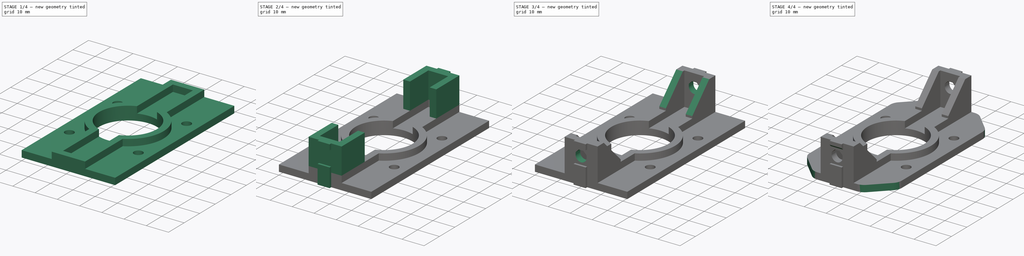
[diagram: build sequence overview — one tinted view per stage of 4, left to right]
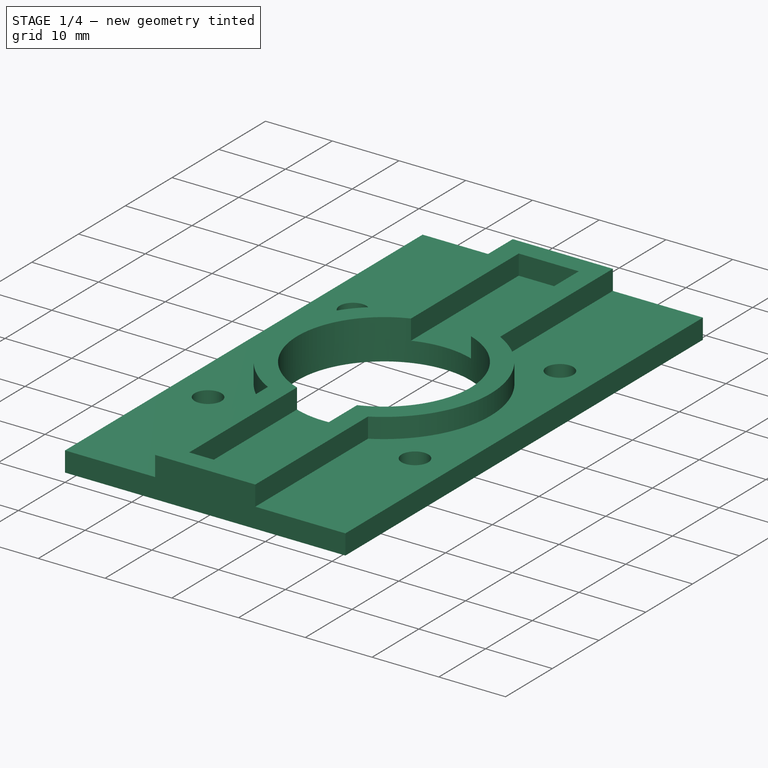
[diagram: stage 1 of 4 — iso view after this stage's code; geometry added in this stage tinted green]
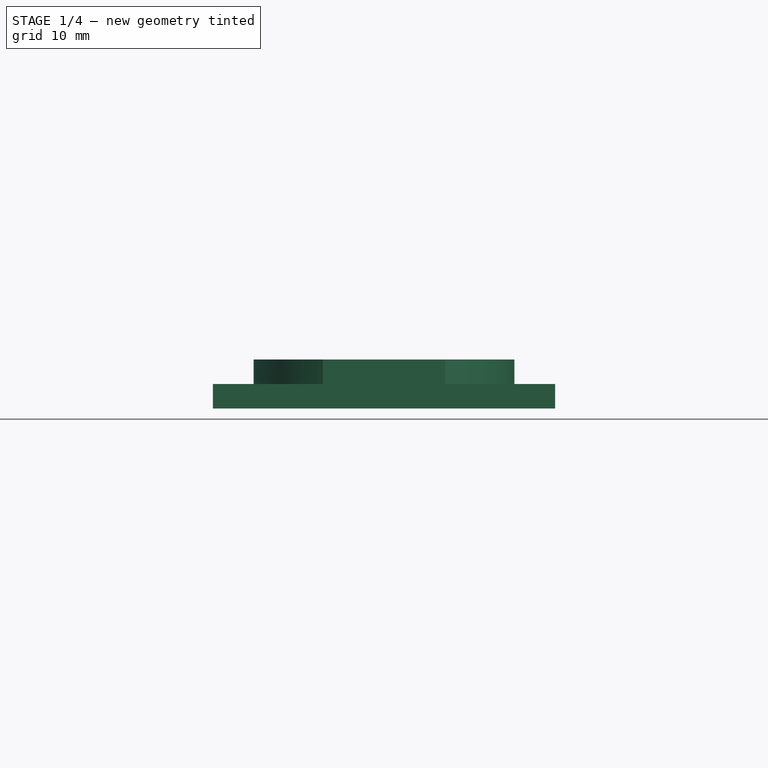
[diagram: stage 1 of 4 — front view after this stage's code; geometry added in this stage tinted green]
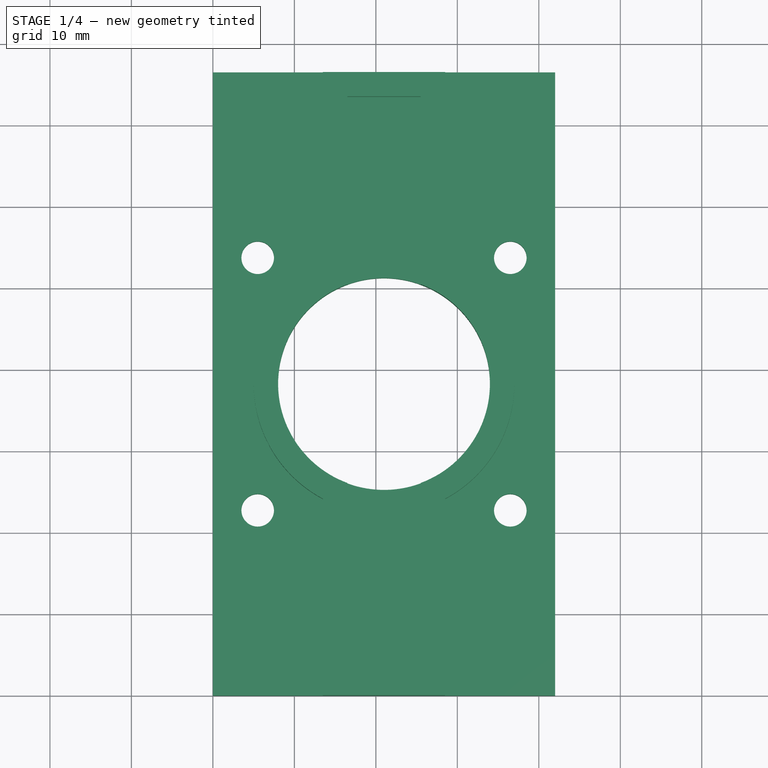
[diagram: stage 1 of 4 — top view after this stage's code; geometry added in this stage tinted green]
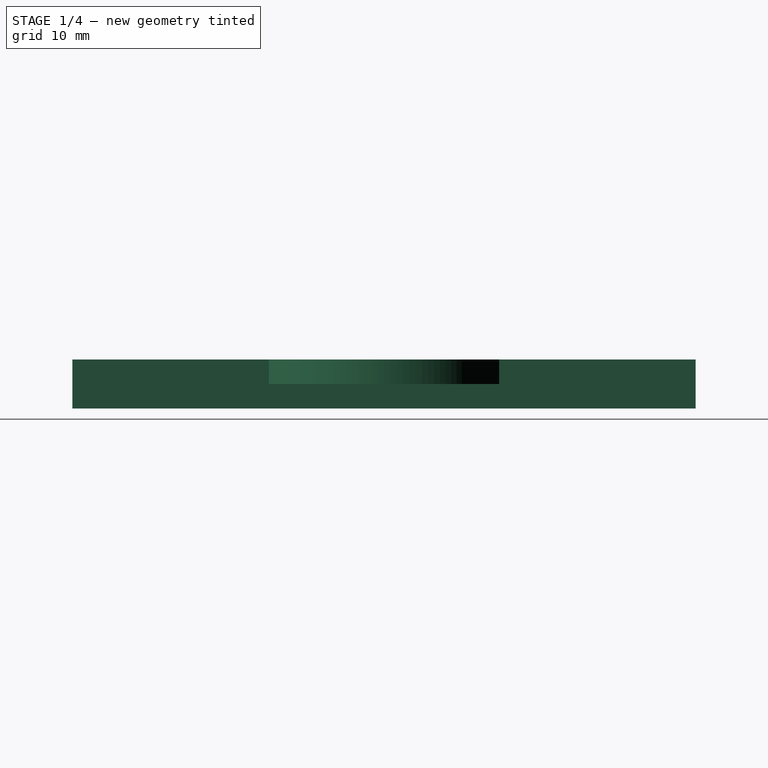
[diagram: stage 1 of 4 — right view after this stage's code; geometry added in this stage tinted green]
FCSTD DOCUMENT  (FreeCAD 0.16R5231 (Git))
Label: StepperTop
License: All rights reserved
LicenseURL: http://de.wikipedia.org/wiki/Alle_Rechte_vorbehalten
objects: Sketcher::SketchObject×7, PartDesign::Pad×5, PartDesign::Chamfer×3, PartDesign::Pocket×2, PartDesign::Fillet×1
note: 25 computed .brp shape members not serialized (recipe doc carries the construction recipe); baked Part::Feature solids carry a one-line shape summary decoded from their .brp

FEATURE [Sketcher::SketchObject] Sketch
  sketch-geometry (15):
    g0: Circle CenterX=21 CenterY=38.25 CenterZ=0 NormalX=0 NormalY=0 NormalZ=1 Radius=13
    g1: Circle CenterX=5.5 CenterY=22.75 CenterZ=0 NormalX=0 NormalY=0 NormalZ=1 Radius=2
    g2: Circle CenterX=5.5 CenterY=53.75 CenterZ=0 NormalX=0 NormalY=0 NormalZ=1 Radius=2
    g3: Circle CenterX=36.5 CenterY=53.75 CenterZ=0 NormalX=0 NormalY=0 NormalZ=1 Radius=2
    g4: Circle CenterX=36.5 CenterY=22.75 CenterZ=0 NormalX=0 NormalY=0 NormalZ=1 Radius=2
    g5: LineSegment StartX=0 StartY=76.5 StartZ=0 EndX=42 EndY=76.5 EndZ=0
    g6: LineSegment StartX=42 StartY=76.5 StartZ=0 EndX=42 EndY=0 EndZ=0
    g7: LineSegment StartX=42 StartY=0 StartZ=0 EndX=0 EndY=0 EndZ=0
    g8: LineSegment StartX=0 StartY=0 StartZ=0 EndX=0 EndY=76.5 EndZ=0
    g9: LineSegment [constr] StartX=5.5 StartY=53.75 StartZ=0 EndX=36.5 EndY=53.75 EndZ=0
    g10: LineSegment [constr] StartX=36.5 StartY=53.75 StartZ=0 EndX=36.5 EndY=22.75 EndZ=0
    g11: LineSegment [constr] StartX=36.5 StartY=22.75 StartZ=0 EndX=5.5 EndY=22.75 EndZ=0
    g12: LineSegment [constr] StartX=5.5 StartY=22.75 StartZ=0 EndX=5.5 EndY=53.75 EndZ=0
    g13: LineSegment [constr] StartX=42 StartY=76.5 StartZ=0 EndX=0 EndY=0 EndZ=0
    g14: LineSegment [constr] StartX=5.5 StartY=22.75 StartZ=0 EndX=36.5 EndY=53.75 EndZ=0
  constraints (36):
    c: Radius(g0) = 13
    c: Equal(g2,g3)
    c: Equal(g3,g4)
    c: Equal(g4,g1)
    c: Radius(g2) = 2
    c: Coincident(g5,g6)
    c: Coincident(g6,g7)
    c: Coincident(g7,g8)
    c: Coincident(g8,g5)
    c: Horizontal(g5)
    c: Horizontal(g7)
    c: Vertical(g6)
    c: Vertical(g8)
    c: Coincident(g7,g-1)
    c: DistanceX(g7) = -42
    c: DistanceY(g8) = 76.5
    c: Coincident(g9,g10)
    c: Coincident(g10,g11)
    c: Coincident(g11,g12)
    c: Coincident(g12,g9)
    c: Horizontal(g9)
    c: Horizontal(g11)
    c: Vertical(g10)
    c: Vertical(g12)
    c: Coincident(g9,g2)
    c: Coincident(g10,g4)
    c: Coincident(g3,g9)
    c: Coincident(g1,g11)
    c: Equal(g9,g12)
    c: DistanceY(g10) = -31
    c: Coincident(g13,g5)
    c: Coincident(g13,g-1)
    c: Symmetric(g13,g13,g0)
    c: Coincident(g14,g1)
    c: Coincident(g14,g3)
    c: Symmetric(g14,g14,g0)
FEATURE [PartDesign::Pad] Pad
  Length = 3
  Length2 = 100
  Sketch = -> Sketch
  Type = 0
FEATURE [Sketcher::SketchObject] Sketch001
  ExternalGeometry = -> [Pad]
  Placement = pos=(0,0,3) rot=(0,0,1;0rad)
  Support = -> Pad [Face11]
  sketch-geometry (9):
    g0: LineSegment StartX=13.5 StartY=76.5 StartZ=0 EndX=28.5 EndY=76.5 EndZ=0
    g1: LineSegment StartX=28.5 StartY=76.5 StartZ=0 EndX=28.5 EndY=52.3833 EndZ=0
    g2: LineSegment StartX=13.5 StartY=52.3833 StartZ=0 EndX=13.5 EndY=76.5 EndZ=0
    g3: LineSegment StartX=13.5 StartY=0 StartZ=0 EndX=28.5 EndY=0 EndZ=0
    g4: LineSegment StartX=28.5 StartY=0 StartZ=0 EndX=28.5 EndY=24.1167 EndZ=0
    g5: LineSegment StartX=13.5 StartY=24.1167 StartZ=0 EndX=13.5 EndY=0 EndZ=0
    g6: LineSegment [constr] StartX=21 StartY=76.5 StartZ=0 EndX=21 EndY=0 EndZ=0
    g7: ArcOfCircle CenterX=21 CenterY=38.25 CenterZ=0 NormalX=0 NormalY=0 NormalZ=1 Radius=16 StartAngle=2.05867 EndAngle=4.22451
    g8: ArcOfCircle CenterX=21 CenterY=38.25 CenterZ=0 NormalX=0 NormalY=0 NormalZ=1 Radius=16 StartAngle=5.20026 EndAngle=7.36611
  constraints (27):
    c: Coincident(g0,g1)
    c: Coincident(g2,g0)
    c: Horizontal(g0)
    c: Vertical(g1)
    c: Vertical(g2)
    c: PointOnObject(g0,g-3)
    c: Coincident(g3,g4)
    c: Coincident(g5,g3)
    c: Horizontal(g3)
    c: Vertical(g4)
    c: Vertical(g5)
    c: PointOnObject(g3,g-4)
    c: Equal(g2,g5)
    c: PointOnObject(g6,g-3)
    c: Vertical(g6)
    c: Symmetric(g-4,g-4,g6)
    c: Symmetric(g0,g0,g6)
    c: Symmetric(g3,g3,g6)
    c: Coincident(g8,g7)
    c: Radius(g8) = 16
    c: Equal(g7,g8)
    c: Symmetric(g6,g6,g7)
    c: DistanceX(g0,g0) = 15
    c: Coincident(g1,g8)
    c: Coincident(g2,g7)
    c: Coincident(g5,g7)
    c: Coincident(g8,g4)
FEATURE [PartDesign::Pad] Pad001
  Length = 3
  Length2 = 100
  Sketch = -> Sketch001
  Type = 0
FEATURE [Sketcher::SketchObject] Sketch003
  ExternalGeometry = -> [Pad001]
  Placement = pos=(0,0,6) rot=(0,0,1;0rad)
  Support = -> Pad001 [Face21]
  sketch-geometry (15):
    g0: LineSegment StartX=25.5 StartY=50.4463 StartZ=0 EndX=25.5 EndY=73.5 EndZ=0
    g1: LineSegment StartX=25.5 StartY=73.5 StartZ=0 EndX=16.5 EndY=73.5 EndZ=0
    g2: LineSegment StartX=16.5 StartY=73.5 StartZ=0 EndX=16.5 EndY=50.4463 EndZ=0
    g3: LineSegment StartX=25.5 StartY=26.0537 StartZ=0 EndX=25.5 EndY=3 EndZ=0
    g4: LineSegment StartX=25.5 StartY=3 StartZ=0 EndX=16.5 EndY=3 EndZ=0
    g5: LineSegment StartX=16.5 StartY=3 StartZ=0 EndX=16.5 EndY=26.0537 EndZ=0
    g6: ArcOfCircle CenterX=21 CenterY=38.25 CenterZ=0 NormalX=0 NormalY=0 NormalZ=1 Radius=13 StartAngle=1.92426 EndAngle=4.35892
    g7: ArcOfCircle CenterX=21 CenterY=38.25 CenterZ=0 NormalX=0 NormalY=0 NormalZ=1 Radius=13 StartAngle=5.06586 EndAngle=7.50051
    g8: LineSegment [constr] StartX=16.5 StartY=50.4463 StartZ=0 EndX=25.5 EndY=50.4463 EndZ=0
    g9: LineSegment [constr] StartX=16.5 StartY=26.0537 StartZ=0 EndX=25.5 EndY=26.0537 EndZ=0
    g10: LineSegment [constr] StartX=21 StartY=76.5 StartZ=0 EndX=21 EndY=73.5 EndZ=0
    g11: LineSegment [constr] StartX=21 StartY=73.5 StartZ=0 EndX=21 EndY=50.4463 EndZ=0
    g12: LineSegment [constr] StartX=21 StartY=50.4463 StartZ=0 EndX=21 EndY=26.0537 EndZ=0
    g13: LineSegment [constr] StartX=21 StartY=26.0537 StartZ=0 EndX=21 EndY=3 EndZ=0
    g14: LineSegment [constr] StartX=21 StartY=3 StartZ=0 EndX=21 EndY=0 EndZ=0
  constraints (43):
    c: Vertical(g0)
    c: Coincident(g0,g1)
    c: Horizontal(g1)
    c: Coincident(g1,g2)
    c: Vertical(g2)
    c: Vertical(g3)
    c: Coincident(g3,g4)
    c: Horizontal(g4)
    c: Coincident(g4,g5)
    c: Vertical(g5)
    c: Coincident(g6,g-5)
    c: Coincident(g7,g6)
    c: Radius(g7) = 13
    c: Equal(g7,g6)
    c: Coincident(g2,g6)
    c: Coincident(g0,g7)
    c: Coincident(g5,g6)
    c: Coincident(g3,g7)
    c: Coincident(g8,g2)
    c: Coincident(g8,g0)
    c: Horizontal(g8)
    c: Coincident(g9,g5)
    c: Coincident(g9,g3)
    c: Horizontal(g9)
    c: Equal(g1,g4)
    c: PointOnObject(g10,g-6)
    c: PointOnObject(g10,g1)
    c: Vertical(g10)
    c: Coincident(g11,g10)
    c: PointOnObject(g11,g8)
    c: Vertical(g11)
    c: Coincident(g12,g11)
    c: PointOnObject(g12,g9)
    c: Vertical(g12)
    c: Coincident(g13,g12)
    c: PointOnObject(g13,g4)
    c: Vertical(g13)
    c: Coincident(g14,g13)
    c: Vertical(g14)
    c: Symmetric(g-7,g-7,g14)
    c: DistanceX(g0,g-6) = 3
    c: DistanceY(g0,g-6) = 3
    c: Equal(g0,g3)
FEATURE [PartDesign::Pocket] Pocket
  Length = 3
  Sketch = -> Sketch003
  Type = 0
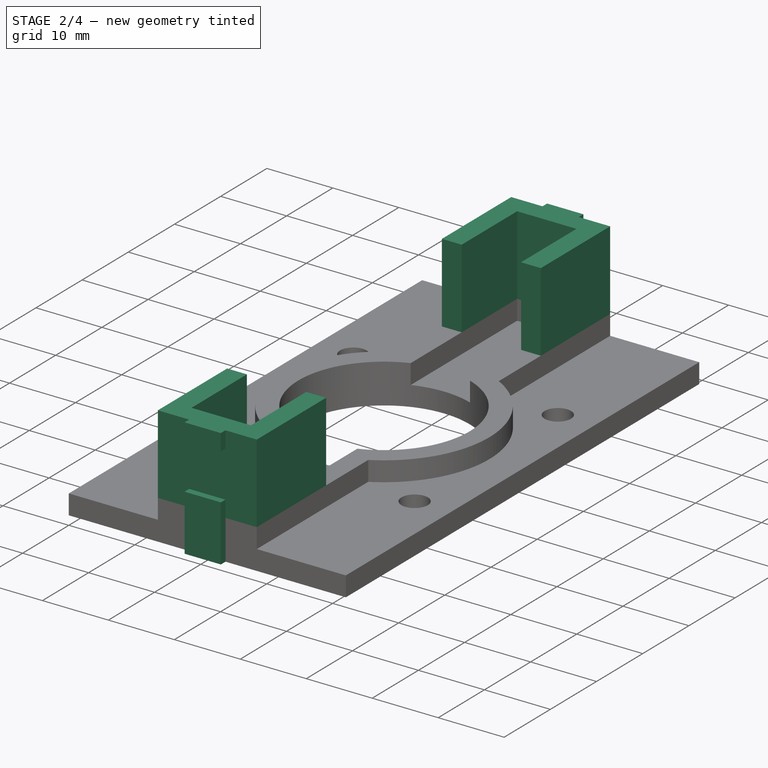
[diagram: stage 2 of 4 — iso view after this stage's code; geometry added in this stage tinted green]
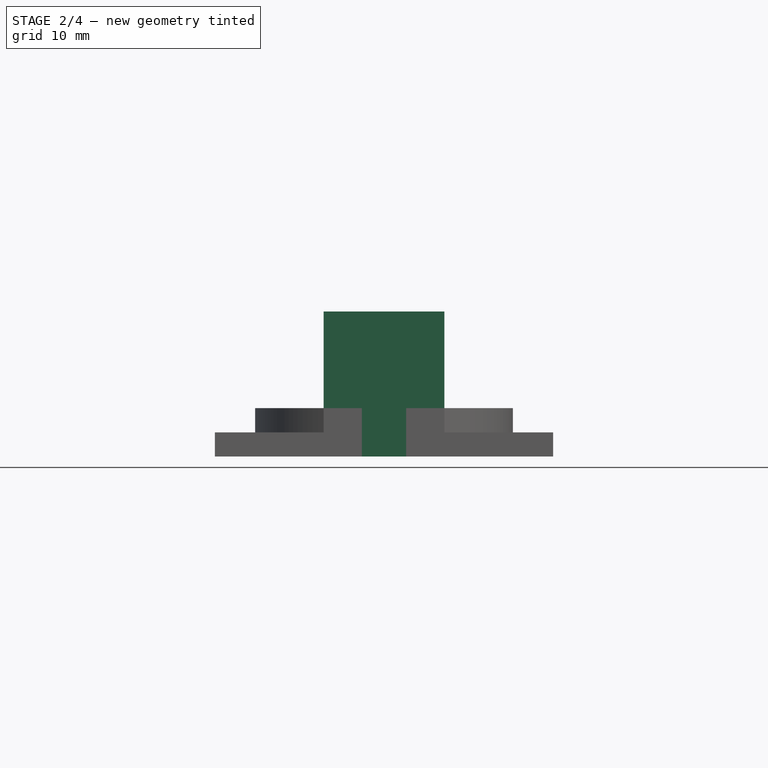
[diagram: stage 2 of 4 — front view after this stage's code; geometry added in this stage tinted green]
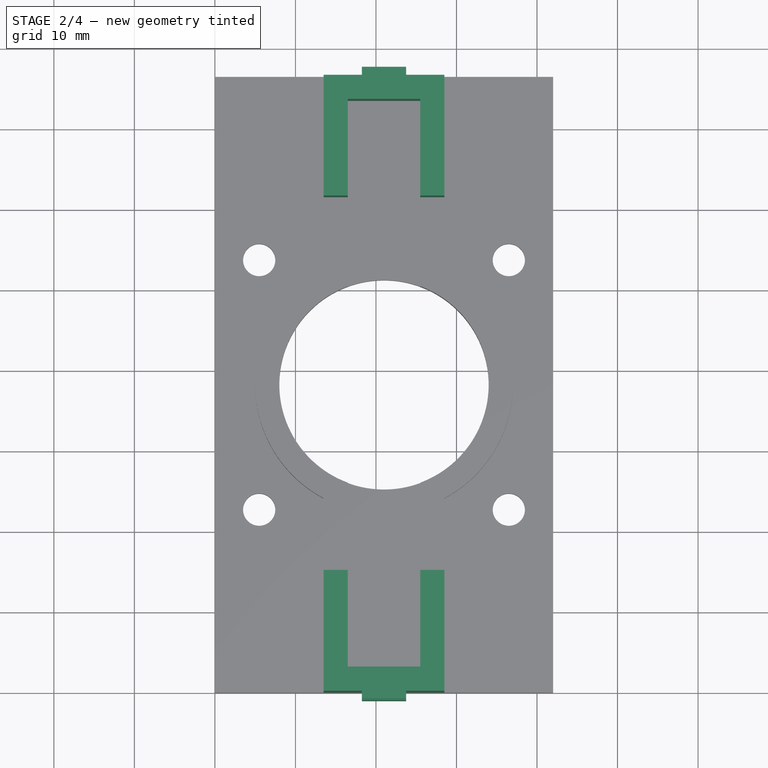
[diagram: stage 2 of 4 — top view after this stage's code; geometry added in this stage tinted green]
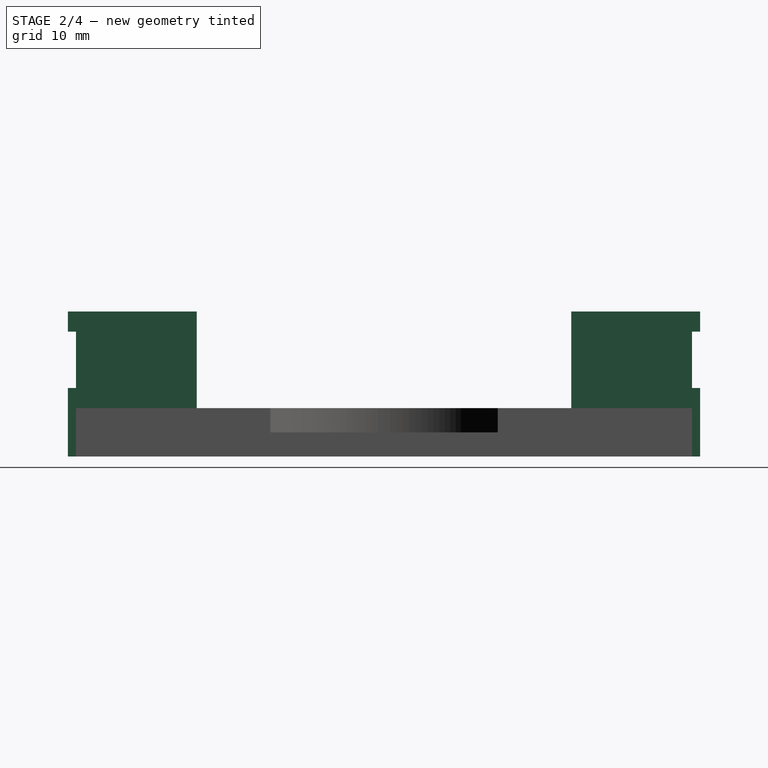
[diagram: stage 2 of 4 — right view after this stage's code; geometry added in this stage tinted green]
FEATURE [Sketcher::SketchObject] Sketch007
  ExternalGeometry = -> [Pocket]
  Placement = pos=(0,0,6) rot=(0,0,1;0rad)
  Support = -> Pocket [Face21]
  sketch-geometry (18):
    g0: LineSegment StartX=13.5 StartY=76.5 StartZ=0 EndX=28.5 EndY=76.5 EndZ=0
    g1: LineSegment StartX=28.5 StartY=76.5 StartZ=0 EndX=28.5 EndY=61.5 EndZ=0
    g2: LineSegment StartX=28.5 StartY=61.5 StartZ=0 EndX=25.5 EndY=61.5 EndZ=0
    g3: LineSegment StartX=25.5 StartY=61.5 StartZ=0 EndX=25.5 EndY=73.5 EndZ=0
    g4: LineSegment StartX=25.5 StartY=73.5 StartZ=0 EndX=16.5 EndY=73.5 EndZ=0
    g5: LineSegment StartX=16.5 StartY=73.5 StartZ=0 EndX=16.5 EndY=61.5 EndZ=0
    g6: LineSegment StartX=16.5 StartY=61.5 StartZ=0 EndX=13.5 EndY=61.5 EndZ=0
    g7: LineSegment StartX=13.5 StartY=61.5 StartZ=0 EndX=13.5 EndY=76.5 EndZ=0
    g8: LineSegment [constr] StartX=16.5 StartY=61.5 StartZ=0 EndX=25.5 EndY=61.5 EndZ=0
    g9: LineSegment StartX=28.5 StartY=0 StartZ=0 EndX=28.5 EndY=15 EndZ=0
    g10: LineSegment StartX=28.5 StartY=15 StartZ=0 EndX=25.5 EndY=15 EndZ=0
    g11: LineSegment StartX=25.5 StartY=15 StartZ=0 EndX=25.5 EndY=3 EndZ=0
    g12: LineSegment StartX=25.5 StartY=3 StartZ=0 EndX=16.5 EndY=3 EndZ=0
    g13: LineSegment StartX=16.5 StartY=3 StartZ=0 EndX=16.5 EndY=15 EndZ=0
    g14: LineSegment StartX=16.5 StartY=15 StartZ=0 EndX=13.5 EndY=15 EndZ=0
    g15: LineSegment StartX=13.5 StartY=15 StartZ=0 EndX=13.5 EndY=0 EndZ=0
    g16: LineSegment StartX=13.5 StartY=0 StartZ=0 EndX=28.5 EndY=0 EndZ=0
    g17: LineSegment [constr] StartX=16.5 StartY=15 StartZ=0 EndX=25.5 EndY=15 EndZ=0
  constraints (44):
    c: Coincident(g-5,g0)
    c: Coincident(g0,g-8)
    c: Coincident(g0,g1)
    c: PointOnObject(g1,g-8)
    c: Coincident(g1,g2)
    c: PointOnObject(g2,g-7)
    c: Horizontal(g2)
    c: Coincident(g2,g3)
    c: Coincident(g3,g-7)
    c: Coincident(g3,g4)
    c: Coincident(g4,g-6)
    c: Coincident(g4,g5)
    c: PointOnObject(g5,g-6)
    c: Coincident(g5,g6)
    c: PointOnObject(g6,g-5)
    c: Horizontal(g6)
    c: Coincident(g6,g7)
    c: Coincident(g7,g0)
    c: Coincident(g8,g5)
    c: Coincident(g8,g2)
    c: Horizontal(g8)
    c: Coincident(g-12,g9)
    c: PointOnObject(g9,g-12)
    c: Coincident(g9,g10)
    c: PointOnObject(g10,g-11)
    c: Coincident(g10,g11)
    c: Coincident(g11,g-11)
    c: Coincident(g11,g12)
    c: Coincident(g12,g-10)
    c: Coincident(g12,g13)
    c: PointOnObject(g13,g-10)
    c: Coincident(g13,g14)
    c: PointOnObject(g14,g-9)
    c: Horizontal(g14)
    c: Coincident(g14,g15)
    c: Coincident(g15,g-9)
    c: Coincident(g15,g16)
    c: Coincident(g16,g9)
    c: Horizontal(g10)
    c: Coincident(g17,g13)
    c: Coincident(g17,g10)
    c: Horizontal(g17)
    c: Equal(g1,g9)
    c: DistanceY(g1) = -15
FEATURE [PartDesign::Pad] Pad002
  Length = 12
  Length2 = 100
  Sketch = -> Sketch007
  Type = 0
FEATURE [Sketcher::SketchObject] Sketch004
  ExternalGeometry = -> [Pad002]
  Placement = pos=(0,0,0) rot=(1,0,0;1.5708rad)
  Support = -> Pad002 [Face21]
  sketch-geometry (9):
    g0: LineSegment StartX=18.25 StartY=18 StartZ=0 EndX=23.75 EndY=18 EndZ=0
    g1: LineSegment StartX=23.75 StartY=18 StartZ=0 EndX=23.75 EndY=15.5 EndZ=0
    g2: LineSegment StartX=23.75 StartY=15.5 StartZ=0 EndX=18.25 EndY=15.5 EndZ=0
    g3: LineSegment StartX=18.25 StartY=15.5 StartZ=0 EndX=18.25 EndY=18 EndZ=0
    g4: LineSegment [constr] StartX=21 StartY=18 StartZ=0 EndX=21 EndY=0 EndZ=0
    g5: LineSegment StartX=18.25 StartY=8.5 StartZ=0 EndX=23.75 EndY=8.5 EndZ=0
    g6: LineSegment StartX=23.75 StartY=8.5 StartZ=0 EndX=23.75 EndY=0 EndZ=0
    g7: LineSegment StartX=23.75 StartY=0 StartZ=0 EndX=18.25 EndY=0 EndZ=0
    g8: LineSegment StartX=18.25 StartY=0 StartZ=0 EndX=18.25 EndY=8.5 EndZ=0
  constraints (26):
    c: Coincident(g0,g1)
    c: Coincident(g1,g2)
    c: Coincident(g2,g3)
    c: Coincident(g3,g0)
    c: Horizontal(g0)
    c: Horizontal(g2)
    c: Vertical(g1)
    c: Vertical(g3)
    c: DistanceX(g0) = 5.5
    c: PointOnObject(g4,g0)
    c: Vertical(g4)
    c: Symmetric(g0,g0,g4)
    c: Symmetric(g-3,g-3,g4)
    c: Symmetric(g-4,g-4,g4)
    c: DistanceY(g1) = -2.5
    c: Coincident(g5,g6)
    c: Coincident(g6,g7)
    c: Coincident(g7,g8)
    c: Coincident(g8,g5)
    c: Horizontal(g5)
    c: Horizontal(g7)
    c: Vertical(g6)
    c: Vertical(g8)
    c: Symmetric(g7,g7,g4)
    c: Equal(g5,g2)
    c: DistanceY(g6) = -8.5
FEATURE [PartDesign::Pad] Pad003
  Length = 1
  Length2 = 100
  Sketch = -> Sketch004
  Type = 0
FEATURE [Sketcher::SketchObject] Sketch005
  ExternalGeometry = -> [Pad003]
  Placement = pos=(0,76.5,0) rot=(0,0.707107,0.707107;3.14159rad)
  Support = -> Pad003 [Face24]
  sketch-geometry (10):
    g0: LineSegment StartX=-23.75 StartY=18 StartZ=0 EndX=-18.25 EndY=18 EndZ=0
    g1: LineSegment StartX=-18.25 StartY=18 StartZ=0 EndX=-18.25 EndY=15.5 EndZ=0
    g2: LineSegment StartX=-18.25 StartY=15.5 StartZ=0 EndX=-23.75 EndY=15.5 EndZ=0
    g3: LineSegment StartX=-23.75 StartY=15.5 StartZ=0 EndX=-23.75 EndY=18 EndZ=0
    g4: LineSegment [constr] StartX=-21 StartY=18 StartZ=0 EndX=-21 EndY=15.5 EndZ=0
    g5: LineSegment StartX=-23.75 StartY=8.5 StartZ=0 EndX=-18.25 EndY=8.5 EndZ=0
    g6: LineSegment StartX=-18.25 StartY=8.5 StartZ=0 EndX=-18.25 EndY=0 EndZ=0
    g7: LineSegment StartX=-18.25 StartY=0 StartZ=0 EndX=-23.75 EndY=0 EndZ=0
    g8: LineSegment StartX=-23.75 StartY=0 StartZ=0 EndX=-23.75 EndY=8.5 EndZ=0
    g9: LineSegment [constr] StartX=-21 StartY=8.5 StartZ=0 EndX=-21 EndY=0 EndZ=0
  constraints (30):
    c: Coincident(g0,g1)
    c: Coincident(g1,g2)
    c: Coincident(g2,g3)
    c: Coincident(g3,g0)
    c: Horizontal(g0)
    c: Horizontal(g2)
    c: Vertical(g1)
    c: Vertical(g3)
    c: PointOnObject(g4,g0)
    c: PointOnObject(g4,g2)
    c: Vertical(g4)
    c: Symmetric(g0,g0,g4)
    c: DistanceX(g0) = 5.5
    c: DistanceY(g1) = -2.5
    c: Symmetric(g-3,g-3,g4)
    c: Coincident(g5,g6)
    c: Coincident(g6,g7)
    c: Coincident(g7,g8)
    c: Coincident(g8,g5)
    c: Horizontal(g5)
    c: Horizontal(g7)
    c: Vertical(g6)
    c: Vertical(g8)
    c: Equal(g2,g5)
    c: PointOnObject(g9,g5)
    c: PointOnObject(g9,g7)
    c: Vertical(g9)
    c: Symmetric(g5,g5,g9)
    c: Symmetric(g-4,g-4,g9)
    c: DistanceY(g6) = -8.5
FEATURE [PartDesign::Pad] Pad004
  Length = 1
  Length2 = 100
  Sketch = -> Sketch005
  Type = 0
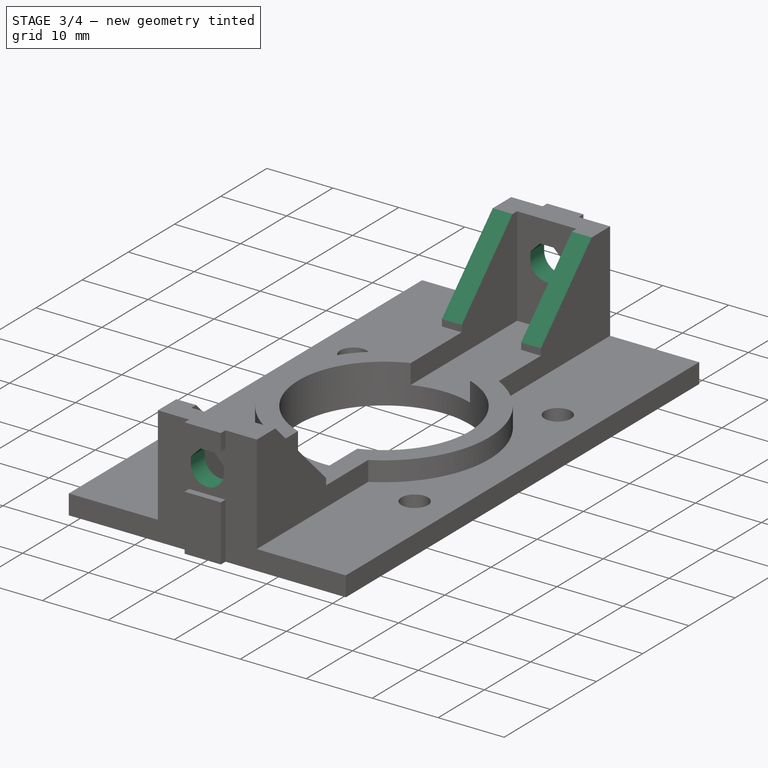
[diagram: stage 3 of 4 — iso view after this stage's code; geometry added in this stage tinted green]
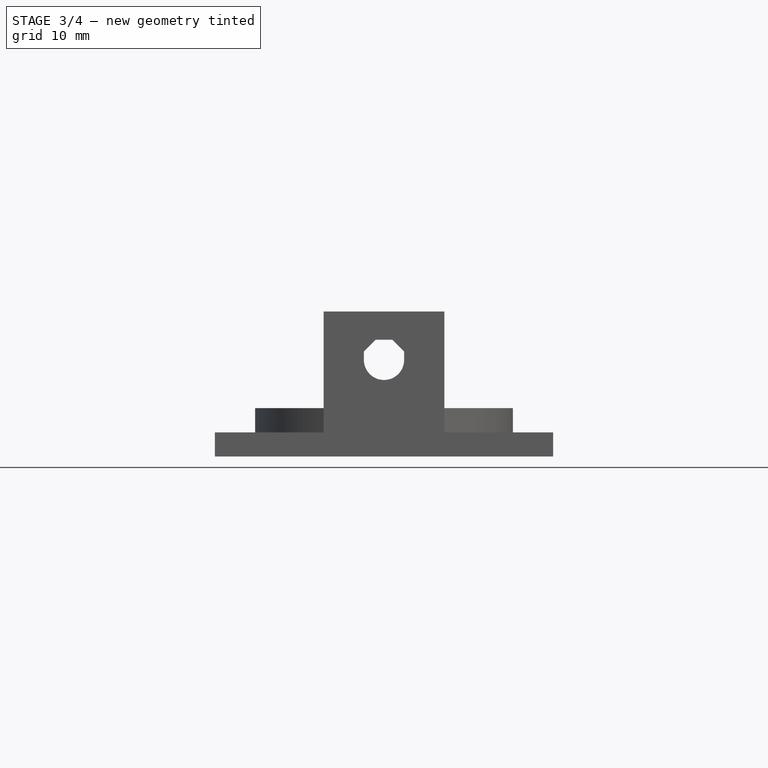
[diagram: stage 3 of 4 — front view after this stage's code; geometry added in this stage tinted green]
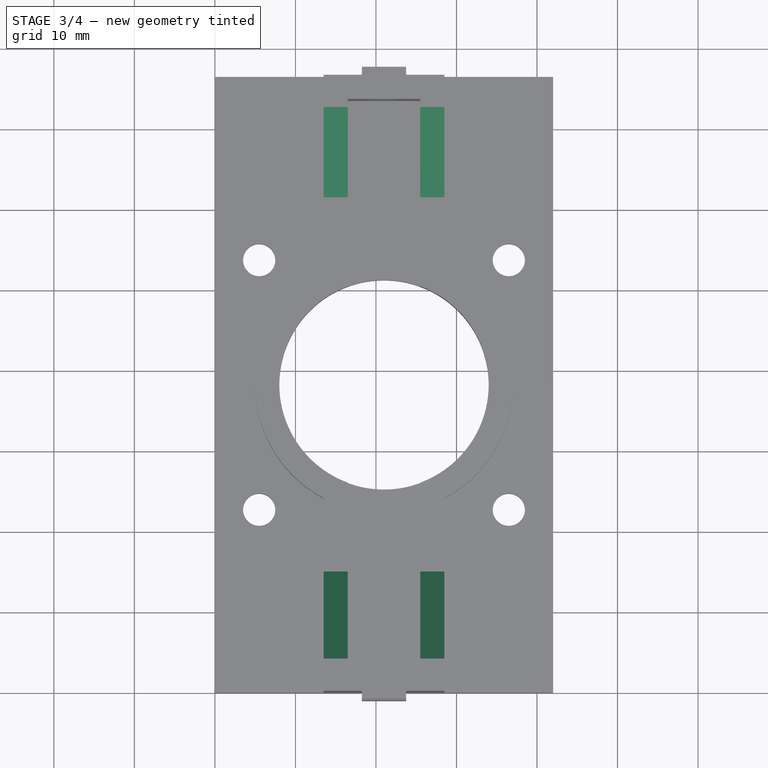
[diagram: stage 3 of 4 — top view after this stage's code; geometry added in this stage tinted green]
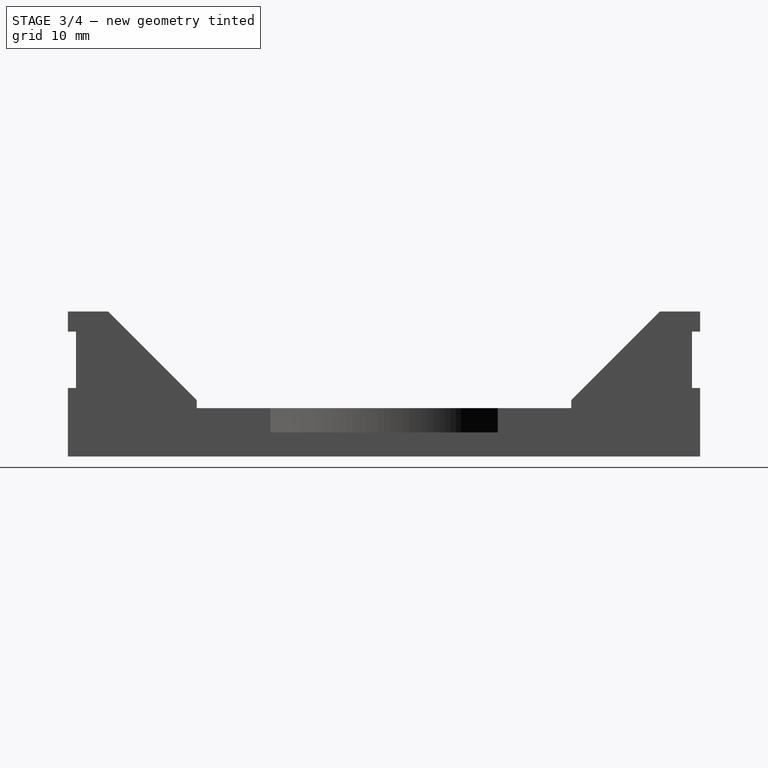
[diagram: stage 3 of 4 — right view after this stage's code; geometry added in this stage tinted green]
FEATURE [Sketcher::SketchObject] Sketch006
  ExternalGeometry = -> [Pad004]
  Placement = pos=(0,0,0) rot=(1,0,0;1.5708rad)
  Support = -> Pad004 [Face23]
  sketch-geometry (9):
    g0: ArcOfCircle CenterX=21 CenterY=12 CenterZ=0 NormalX=0 NormalY=0 NormalZ=1 Radius=2.5 StartAngle=3.14159 EndAngle=6.28319
    g1: LineSegment [constr] StartX=21 StartY=15.5 StartZ=0 EndX=21 EndY=8.5 EndZ=0
    g2: LineSegment [constr] StartX=18.5 StartY=12 StartZ=0 EndX=23.5 EndY=12 EndZ=0
    g3: ArcOfCircle [constr] CenterX=21 CenterY=12 CenterZ=0 NormalX=0 NormalY=0 NormalZ=1 Radius=2.5 StartAngle=0 EndAngle=3.14159
    g4: LineSegment StartX=18.5 StartY=12 StartZ=0 EndX=18.5 EndY=13.0355 EndZ=0
    g5: LineSegment StartX=18.5 StartY=13.0355 StartZ=0 EndX=19.9645 EndY=14.5 EndZ=0
    g6: LineSegment StartX=19.9645 StartY=14.5 StartZ=0 EndX=22.0355 EndY=14.5 EndZ=0
    g7: LineSegment StartX=22.0355 StartY=14.5 StartZ=0 EndX=23.5 EndY=13.0355 EndZ=0
    g8: LineSegment StartX=23.5 StartY=13.0355 StartZ=0 EndX=23.5 EndY=12 EndZ=0
  constraints (26):
    c: Radius(g0) = 2.5
    c: Vertical(g1)
    c: Symmetric(g1,g1,g0)
    c: Coincident(g2,g0)
    c: Coincident(g2,g0)
    c: Horizontal(g2)
    c: Symmetric(g2,g2,g0)
    c: Coincident(g3,g0)
    c: Coincident(g3,g0)
    c: PointOnObject(g3,g2)
    c: Coincident(g4,g0)
    c: Vertical(g4)
    c: Coincident(g5,g4)
    c: Coincident(g6,g5)
    c: Horizontal(g6)
    c: Coincident(g7,g6)
    c: Coincident(g8,g7)
    c: Coincident(g8,g0)
    c: Vertical(g8)
    c: Equal(g5,g6)
    c: Equal(g6,g7)
    c: Tangent(g6,g3)
    c: Tangent(g7,g3)
    c: Equal(g4,g8)
    c: Symmetric(g-3,g-3,g1)
    c: Symmetric(g-4,g-4,g1)
FEATURE [PartDesign::Pocket] Pocket001
  Length = 5
  Sketch = -> Sketch006
  Type = 1
FEATURE [PartDesign::Chamfer] Chamfer
  Base = -> Pocket001 [Edge168,Edge172,Edge140,Edge145]
  Size = 11
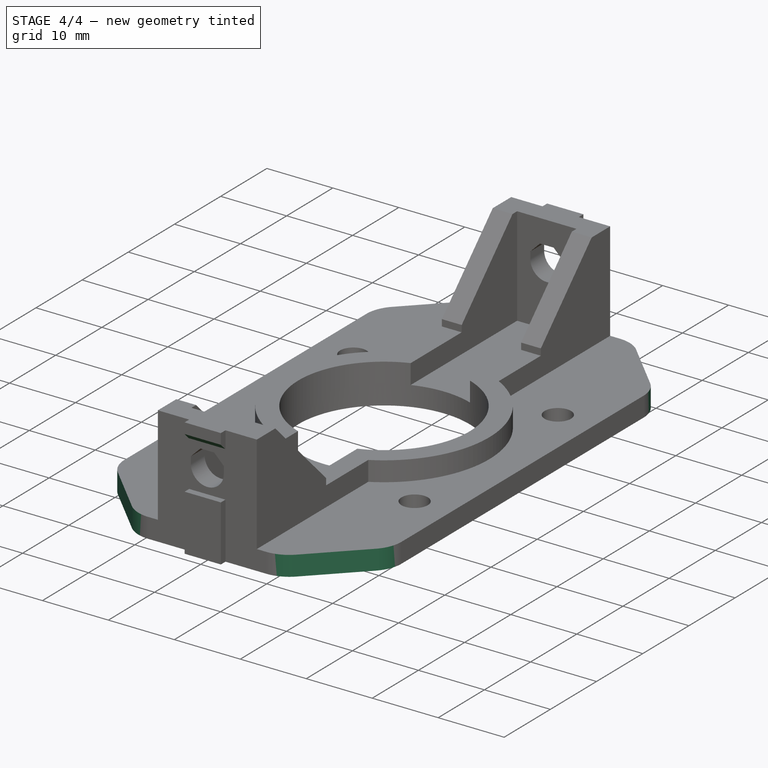
[diagram: stage 4 of 4 — iso view after this stage's code; geometry added in this stage tinted green]
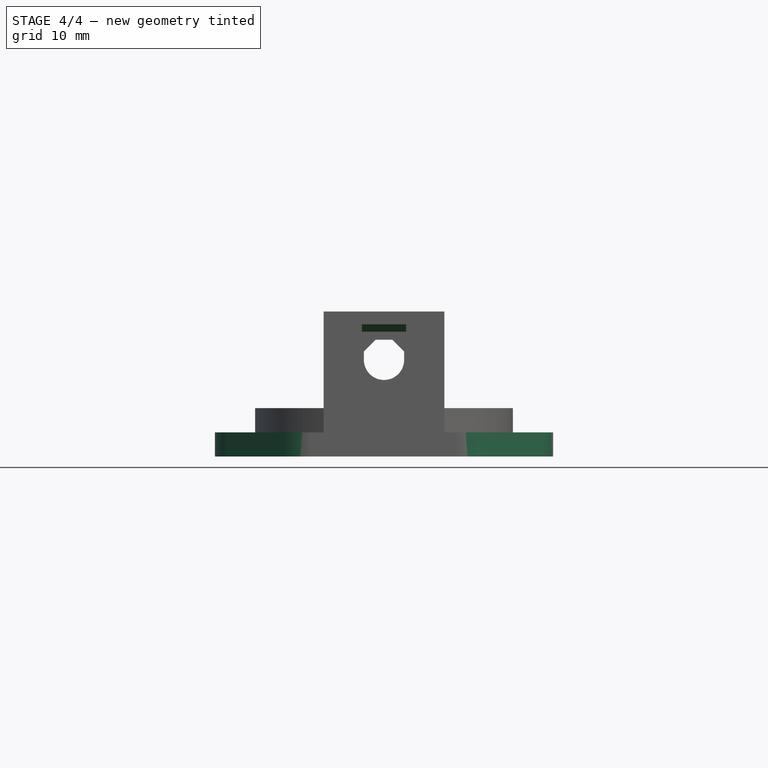
[diagram: stage 4 of 4 — front view after this stage's code; geometry added in this stage tinted green]
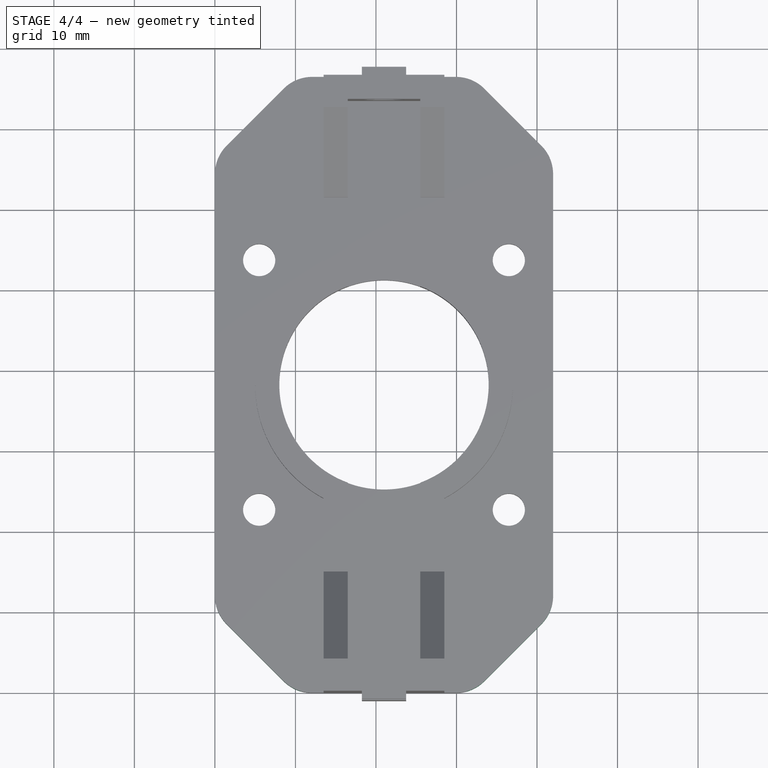
[diagram: stage 4 of 4 — top view after this stage's code; geometry added in this stage tinted green]
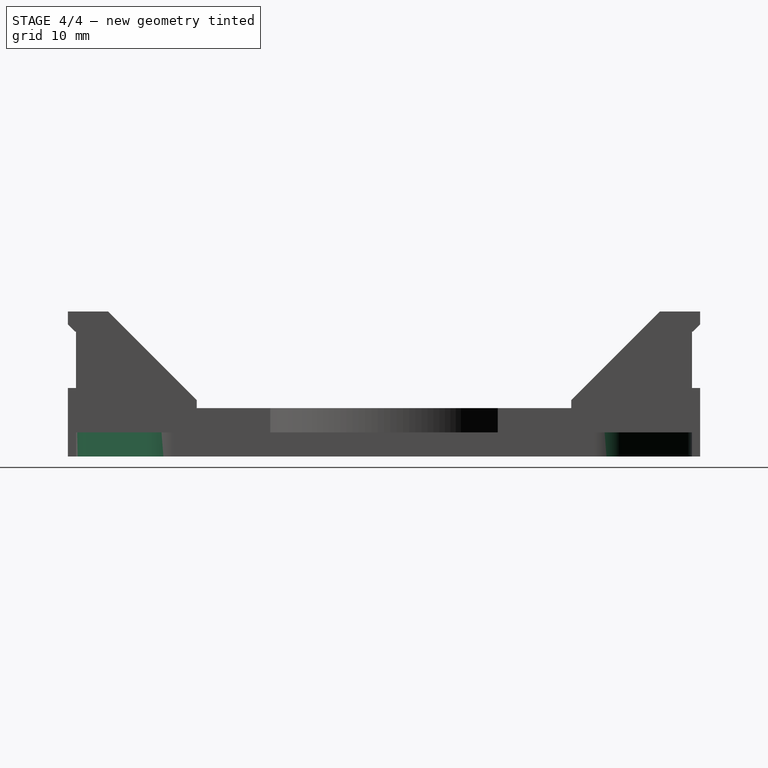
[diagram: stage 4 of 4 — right view after this stage's code; geometry added in this stage tinted green]
FEATURE [PartDesign::Chamfer] Chamfer001
  Base = -> Chamfer [Edge113,Edge176,Edge111,Edge133]
  Size = 10
FEATURE [PartDesign::Fillet] Fillet
  Base = -> Chamfer001 [Edge12,Edge16,Edge22,Edge26,Edge84,Edge80,Edge74,Edge78]
  Radius = 5
FEATURE [PartDesign::Chamfer] Chamfer002
  Base = -> Fillet [Edge204,Edge239]
  Size = 0.9
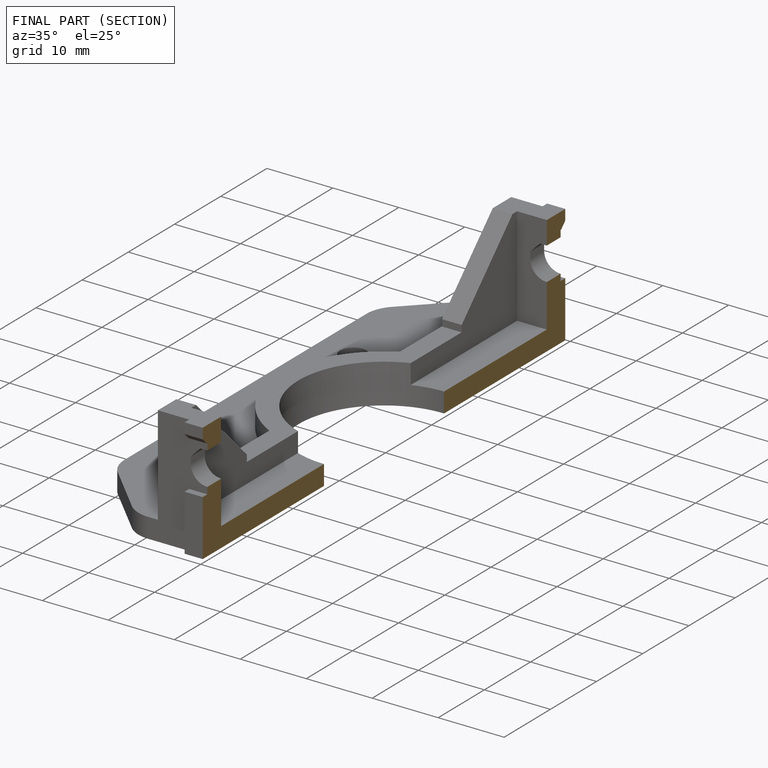
[diagram: finished part — half-section view (interior)]
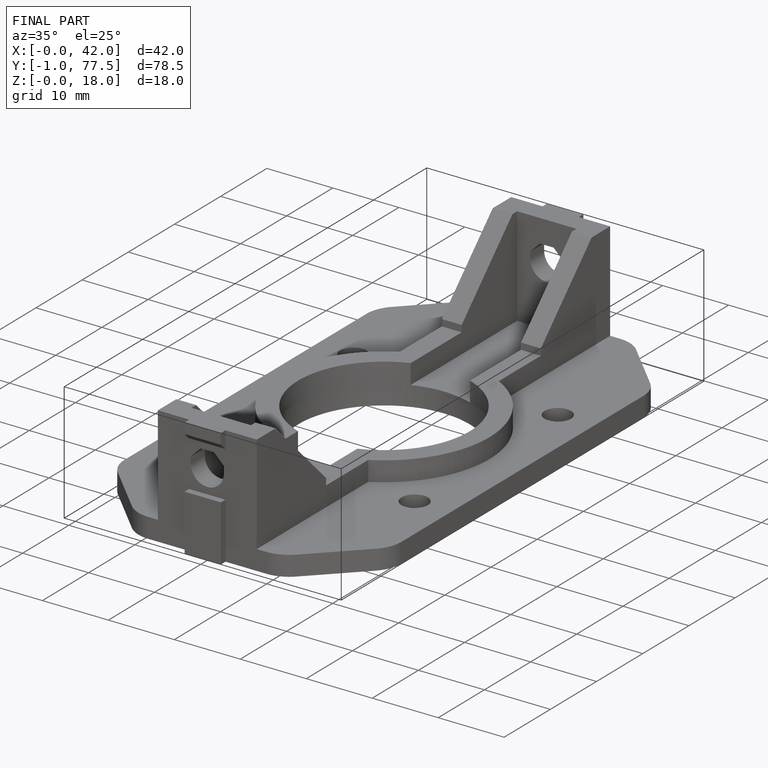
[diagram: finished part — iso view with bounding-box wireframe]
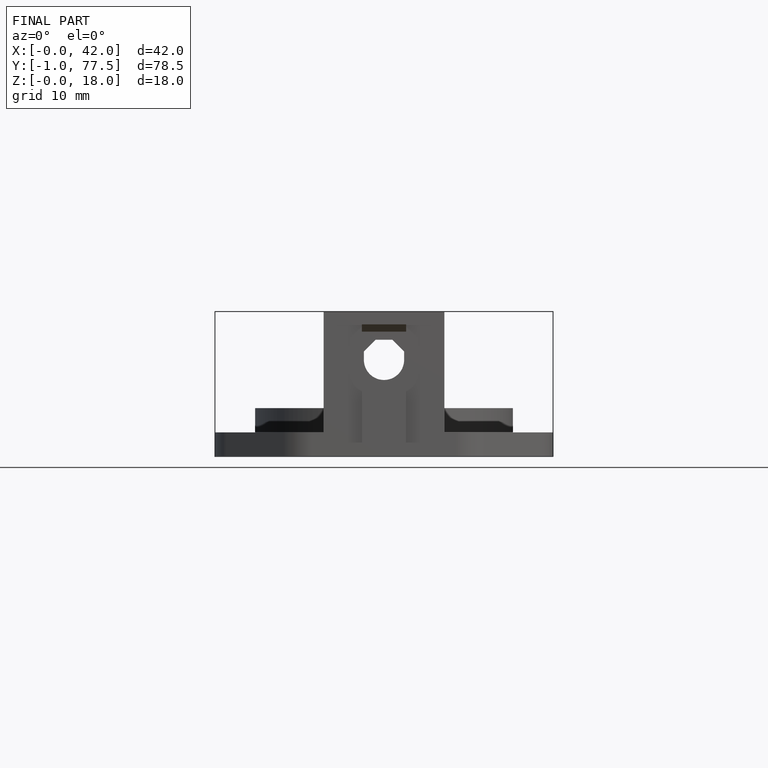
[diagram: finished part — front view with bounding-box wireframe]
